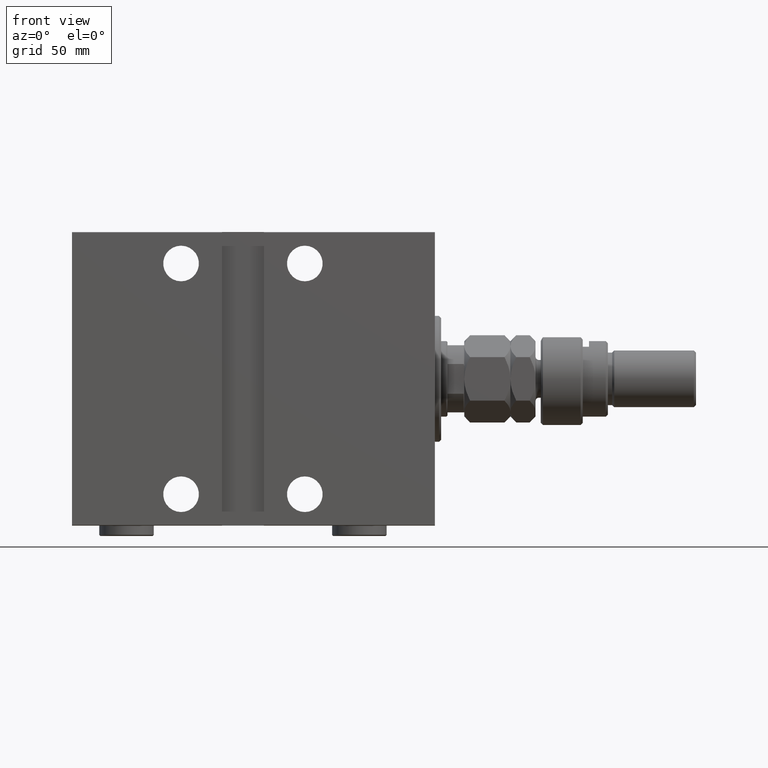
[diagram: clean part render]
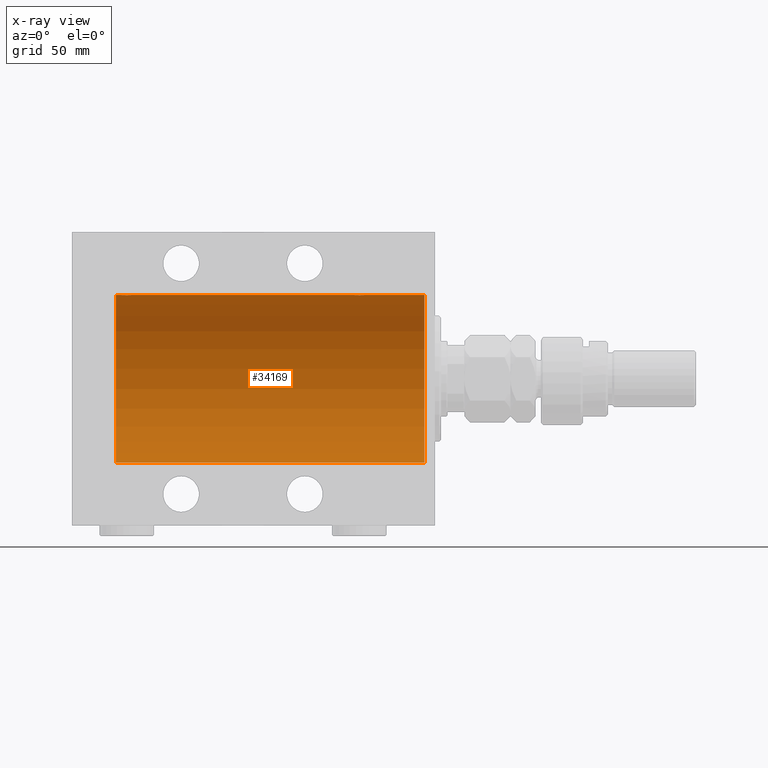
[diagram: x-ray — body ghosted, one internal face saturated and labeled with its STEP entity id]
A machine part, front view, then the same camera in x-ray: the body is ghosted and one INTERNAL B-rep face — a face not visible from any outside direction — is saturated and labeled: STEP entity #34169.
In plain terms, the highlighted cylindrical surface (partial cylindrical patch) has radius 40 mm, axis along (1, 0, -0).
Its self-contained STEP definition (entity closure, byte-faithful):
#463 = LINE ( 'NONE', #29855, #35628 ) ;
#1110 = B_SPLINE_CURVE_WITH_KNOTS ( 'NONE', 3,
 ( #13234, #6518, #27797, #24203, #38802, #35456, #32103, #17048, #2230, #6049, #17274, #2698, #42630, #3173, #46664, #39279, #28739, #21093, #20629, #2935, #31864, #13939, #31633, #35220, #38564, #43095, #46426, #24691, #2471, #10111, #9869, #24443 ),
 .UNSPECIFIED., .F., .F.,
 ( 4, 2, 2, 2, 2, 2, 2, 2, 2, 2, 2, 2, 2, 2, 2, 4 ),
 ( 0.009382660366305105304, 0.009968941372944142842, 0.01055522237958318038, 0.01114150338622221965, 0.01172778439286125719, 0.01231406539950029473, 0.01290034640613933400, 0.01348662741277837154, 0.01407290841941740908, 0.01465918942605644835, 0.01524547043269548416, 0.01583175143933452517, 0.01641803244597356271, 0.01700431345261260024, 0.01759059445925163778, 0.01876315647252971286 ),
 .UNSPECIFIED. ) ;
#1304 = CARTESIAN_POINT ( 'NONE',  ( 144.0000000000000284, -0.1957844162750525807, 40.00000000000000000 ) ) ;
#1772 = VERTEX_POINT ( 'NONE', #4024 ) ;
#1792 = CARTESIAN_POINT ( 'NONE',  ( 144.7390238300526164, -1.981471132463162643, 39.95113231465138171 ) ) ;
#2230 = CARTESIAN_POINT ( 'NONE',  ( 33.73902383005257377, -1.981471132463168416, 39.95113231465138881 ) ) ;
#2471 = CARTESIAN_POINT ( 'NONE',  ( 38.69537007708435539, -1.331594428131644747, 39.97823692017209396 ) ) ;
#2509 = CARTESIAN_POINT ( 'NONE',  ( 152.0000000000000000, 0.000000000000000000, 0.000000000000000000 ) ) ;
#2523 = LINE ( 'NONE', #24960, #41091 ) ;
#2698 = CARTESIAN_POINT ( 'NONE',  ( 34.49556917086533758, -2.602909538701760006, 39.91537030566259148 ) ) ;
#2935 = CARTESIAN_POINT ( 'NONE',  ( 36.77455678826341057, -2.904869018727228358, 39.89440043036668015 ) ) ;
#3173 = CARTESIAN_POINT ( 'NONE',  ( 35.03061658105534804, -2.845855236045349734, 39.89870693240651889 ) ) ;
#4024 = CARTESIAN_POINT ( 'NONE',  ( 152.0000000000000000, 4.898587196589413026E-15, -40.00000000000000000 ) ) ;
#4064 = EDGE_CURVE ( 'NONE', #1772, #43406, #463, .T. ) ;
#4418 = CARTESIAN_POINT ( 'NONE',  ( 147.9648932585351702, -2.847401743820454190, 39.89859630624609821 ) ) ;
#4615 = CARTESIAN_POINT ( 'NONE',  ( 5.000000000000004441, 4.898587196589413026E-15, -40.00000000000000000 ) ) ;
#4891 = CARTESIAN_POINT ( 'NONE',  ( 144.1533472698686182, -0.9668189122103342248, 39.98872185468384544 ) ) ;
#5329 = EDGE_CURVE ( 'NONE', #47017, #22096, #22344, .T. ) ;
#5368 = CARTESIAN_POINT ( 'NONE',  ( 144.3027865941912182, -1.327859336864145590, 39.97836169682017982 ) ) ;
#5455 = B_SPLINE_CURVE_WITH_KNOTS ( 'NONE', 3,
 ( #34535, #1304, #23528, #38118, #4891, #5368, #26178, #16363, #1792, #8476, #23055, #19466, #33586, #30953, #34055, #11602, #15884, #41473, #40762, #8005, #4418, #19000, #31668, #31192, #17310, #42899, #24007, #28067, #28311, #45757, #46226, #9668 ),
 .UNSPECIFIED., .F., .F.,
 ( 4, 2, 2, 2, 2, 2, 2, 2, 2, 2, 2, 2, 2, 2, 2, 4 ),
 ( 0.009382660366305094896, 0.009968941372944130699, 0.01055522237958316650, 0.01114150338622220404, 0.01172778439286123985, 0.01231406539950027565, 0.01290034640613930972, 0.01348662741277834379, 0.01407290841941737959, 0.01465918942605641540, 0.01524547043269544946, 0.01583175143933448353, 0.01641803244597352107, 0.01700431345261255514, 0.01759059445925158921, 0.01876315647252969204 ),
 .UNSPECIFIED. ) ;
#5474 = CIRCLE ( 'NONE', #38303, 40.00000000000000000 ) ;
#5921 = VECTOR ( 'NONE', #47077, 1000.000000000000000 ) ;
#6049 = CARTESIAN_POINT ( 'NONE',  ( 34.01538552187719233, -2.258217541132905293, 39.93644519243653690 ) ) ;
#6518 = CARTESIAN_POINT ( 'NONE',  ( 32.99999999999997158, -0.1957844162750552452, 40.00000000000000000 ) ) ;
#6638 = CARTESIAN_POINT ( 'NONE',  ( 152.0000000000000000, 0.000000000000000000, 40.00000000000000000 ) ) ;
#6703 = CARTESIAN_POINT ( 'NONE',  ( 39.00000000000000000, 1.037715139942869821E-15, 40.00000000000000000 ) ) ;
#6855 = CARTESIAN_POINT ( 'NONE',  ( 152.0000000000000000, 0.000000000000000000, 0.000000000000000000 ) ) ;
#8005 = CARTESIAN_POINT ( 'NONE',  ( 147.7745567882635100, -2.904869018727220364, 39.89440043036669437 ) ) ;
#8406 = EDGE_CURVE ( 'NONE', #33878, #30410, #1110, .T. ) ;
#8450 = ORIENTED_EDGE ( 'NONE', *, *, #5329, .F. ) ;
#8476 = CARTESIAN_POINT ( 'NONE',  ( 145.0153855218772208, -2.258217541132898631, 39.93644519243653690 ) ) ;
#8762 = ORIENTED_EDGE ( 'NONE', *, *, #20652, .T. ) ;
#9668 = CARTESIAN_POINT ( 'NONE',  ( 150.0000000000000284, 1.446721683758770418E-15, 40.00000000000000000 ) ) ;
#9869 = CARTESIAN_POINT ( 'NONE',  ( 39.00000000000000711, -0.3964922677423692865, 40.00000000000000711 ) ) ;
#9891 = CIRCLE ( 'NONE', #44978, 40.00000000000000000 ) ;
#10111 = CARTESIAN_POINT ( 'NONE',  ( 38.92026174991647025, -0.7903958539027386987, 39.99381900068935636 ) ) ;
#10122 = VERTEX_POINT ( 'NONE', #47032 ) ;
#10148 = DIRECTION ( 'NONE',  ( -1.000000000000000000, 0.000000000000000000, 0.000000000000000000 ) ) ;
#10700 = EDGE_CURVE ( 'NONE', #1772, #47017, #9891, .T. ) ;
#11602 = CARTESIAN_POINT ( 'NONE',  ( 146.6047751654642468, -2.980272303779546217, 39.88883864243170052 ) ) ;
#12037 = CARTESIAN_POINT ( 'NONE',  ( 144.0000000000000284, -1.482387970046064334E-23, 40.00000000000000000 ) ) ;
#12922 = ORIENTED_EDGE ( 'NONE', *, *, #43924, .T. ) ;
#12933 = DIRECTION ( 'NONE',  ( -1.000000000000000000, 0.000000000000000000, 0.000000000000000000 ) ) ;
#13234 = CARTESIAN_POINT ( 'NONE',  ( 32.99999999999999289, -1.483452932268112700E-23, 40.00000000000000000 ) ) ;
#13617 = AXIS2_PLACEMENT_3D ( 'NONE', #6855, #21440, #36027 ) ;
#13665 = LINE ( 'NONE', #14126, #5921 ) ;
#13939 = CARTESIAN_POINT ( 'NONE',  ( 37.32853644746295885, -2.696981015661930936, 39.90904630908465833 ) ) ;
#14126 = CARTESIAN_POINT ( 'NONE',  ( 152.0000000000000000, 0.000000000000000000, 40.00000000000000000 ) ) ;
#14790 = CARTESIAN_POINT ( 'NONE',  ( 32.99999999999999289, -1.483452932268112700E-23, 40.00000000000000000 ) ) ;
#15110 = ORIENTED_EDGE ( 'NONE', *, *, #8406, .T. ) ;
#15168 = DIRECTION ( 'NONE',  ( -1.000000000000000000, -0.000000000000000000, -0.000000000000000000 ) ) ;
#15884 = CARTESIAN_POINT ( 'NONE',  ( 146.7995871398080112, -2.999840380514742666, 39.88735335562825668 ) ) ;
#16263 = CARTESIAN_POINT ( 'NONE',  ( 150.0000000000000284, 1.446721683758770418E-15, 40.00000000000000000 ) ) ;
#16363 = CARTESIAN_POINT ( 'NONE',  ( 144.6149239908465063, -1.830402106103516280, 39.95843610133492518 ) ) ;
#17048 = CARTESIAN_POINT ( 'NONE',  ( 33.61492399084646365, -1.830402106103518722, 39.95843610133494650 ) ) ;
#17274 = CARTESIAN_POINT ( 'NONE',  ( 34.16955177177597847, -2.384933850258112553, 39.92898715513240404 ) ) ;
#17310 = CARTESIAN_POINT ( 'NONE',  ( 148.9813627951423030, -2.261082456166709775, 39.93628274425758207 ) ) ;
#19000 = CARTESIAN_POINT ( 'NONE',  ( 148.3285364474630228, -2.696981015661923387, 39.90904630908469386 ) ) ;
#19466 = CARTESIAN_POINT ( 'NONE',  ( 145.4955691708653092, -2.602909538701757342, 39.91537030566259858 ) ) ;
#20395 = VECTOR ( 'NONE', #15168, 1000.000000000000000 ) ;
#20629 = CARTESIAN_POINT ( 'NONE',  ( 36.39109692509333627, -2.980812880639903906, 39.88879797994688658 ) ) ;
#20652 = EDGE_CURVE ( 'NONE', #28911, #22096, #5455, .T. ) ;
#21093 = CARTESIAN_POINT ( 'NONE',  ( 36.19560531073086906, -3.000157693440643758, 39.88732948994960026 ) ) ;
#21440 = DIRECTION ( 'NONE',  ( -1.000000000000000000, -0.000000000000000000, -0.000000000000000000 ) ) ;
#22096 = VERTEX_POINT ( 'NONE', #16263 ) ;
#22344 = LINE ( 'NONE', #40048, #20395 ) ;
#23055 = CARTESIAN_POINT ( 'NONE',  ( 145.1695517717760424, -2.384933850258109445, 39.92898715513240404 ) ) ;
#23528 = CARTESIAN_POINT ( 'NONE',  ( 144.0189812288907660, -0.3904143323715967839, 39.99856256910221219 ) ) ;
#24007 = CARTESIAN_POINT ( 'NONE',  ( 149.3825168091146622, -1.833695109615722352, 39.95828327492363030 ) ) ;
#24203 = CARTESIAN_POINT ( 'NONE',  ( 33.09574826348647036, -0.7773146824711036906, 39.99291453282343412 ) ) ;
#24443 = CARTESIAN_POINT ( 'NONE',  ( 39.00000000000000000, 1.037715139942869821E-15, 40.00000000000000000 ) ) ;
#24691 = CARTESIAN_POINT ( 'NONE',  ( 38.60188728128492386, -1.506322235190783232, 39.97196309111974699 ) ) ;
#24960 = CARTESIAN_POINT ( 'NONE',  ( 152.0000000000000000, 0.000000000000000000, 40.00000000000000000 ) ) ;
#25020 = FACE_OUTER_BOUND ( 'NONE', #32119, .T. ) ;
#26178 = CARTESIAN_POINT ( 'NONE',  ( 144.3956640008792078, -1.502129635934003948, 39.97212271185186694 ) ) ;
#27494 = DIRECTION ( 'NONE',  ( 0.000000000000000000, 0.000000000000000000, 1.000000000000000000 ) ) ;
#27797 = CARTESIAN_POINT ( 'NONE',  ( 33.01898122889073051, -0.3904143323715976166, 39.99856256910221219 ) ) ;
#28067 = CARTESIAN_POINT ( 'NONE',  ( 149.6018872812850020, -1.506322235190787895, 39.97196309111976831 ) ) ;
#28311 = CARTESIAN_POINT ( 'NONE',  ( 149.6953700770844193, -1.331594428131642527, 39.97823692017210107 ) ) ;
#28739 = CARTESIAN_POINT ( 'NONE',  ( 35.79958713980802543, -2.999840380514749327, 39.88735335562824247 ) ) ;
#28911 = VERTEX_POINT ( 'NONE', #12037 ) ;
#29855 = CARTESIAN_POINT ( 'NONE',  ( 152.0000000000000000, 4.898587196589413026E-15, -40.00000000000000000 ) ) ;
#30410 = VERTEX_POINT ( 'NONE', #6703 ) ;
#30953 = CARTESIAN_POINT ( 'NONE',  ( 146.0306165810553409, -2.845855236045348402, 39.89870693240650468 ) ) ;
#31192 = CARTESIAN_POINT ( 'NONE',  ( 148.8269018463241480, -2.387636253591820079, 39.92882473497732576 ) ) ;
#31633 = CARTESIAN_POINT ( 'NONE',  ( 37.50088468404035069, -2.604941918888315833, 39.91523680494983495 ) ) ;
#31668 = CARTESIAN_POINT ( 'NONE',  ( 148.5008846840404146, -2.604941918888313612, 39.91523680494984916 ) ) ;
#31717 = ORIENTED_EDGE ( 'NONE', *, *, #4064, .T. ) ;
#31719 = EDGE_CURVE ( 'NONE', #33878, #10122, #13665, .T. ) ;
#31804 = CARTESIAN_POINT ( 'NONE',  ( 5.000000000000004441, 0.000000000000000000, 0.000000000000000000 ) ) ;
#31864 = CARTESIAN_POINT ( 'NONE',  ( 36.96489325853514174, -2.847401743820462183, 39.89859630624607689 ) ) ;
#32103 = CARTESIAN_POINT ( 'NONE',  ( 33.39566400087915810, -1.502129635934004614, 39.97212271185186694 ) ) ;
#32119 = EDGE_LOOP ( 'NONE', ( #35135, #31717, #12922, #37005, #15110, #44210, #8762, #8450 ) ) ;
#32151 = DIRECTION ( 'NONE',  ( -1.000000000000000000, -0.000000000000000000, -0.000000000000000000 ) ) ;
#33586 = CARTESIAN_POINT ( 'NONE',  ( 145.6677573113414326, -2.695129988695745826, 39.90917164320281074 ) ) ;
#33878 = VERTEX_POINT ( 'NONE', #14790 ) ;
#34055 = CARTESIAN_POINT ( 'NONE',  ( 146.2213047658425467, -2.903766417398230271, 39.89448096967571189 ) ) ;
#34169 = ADVANCED_FACE ( 'NONE', ( #25020 ), #39614, .F. ) ;
#34446 = EDGE_CURVE ( 'NONE', #28911, #30410, #2523, .T. ) ;
#34535 = CARTESIAN_POINT ( 'NONE',  ( 144.0000000000000284, -1.482387970046064334E-23, 40.00000000000000000 ) ) ;
#35135 = ORIENTED_EDGE ( 'NONE', *, *, #10700, .F. ) ;
#35220 = CARTESIAN_POINT ( 'NONE',  ( 37.82690184632411246, -2.387636253591820079, 39.92882473497731866 ) ) ;
#35456 = CARTESIAN_POINT ( 'NONE',  ( 33.30278659419118270, -1.327859336864150253, 39.97836169682017982 ) ) ;
#35491 = DIRECTION ( 'NONE',  ( 0.000000000000000000, 0.000000000000000000, 1.000000000000000000 ) ) ;
#35628 = VECTOR ( 'NONE', #44429, 1000.000000000000000 ) ;
#36027 = DIRECTION ( 'NONE',  ( 0.000000000000000000, 0.000000000000000000, 1.000000000000000000 ) ) ;
#37005 = ORIENTED_EDGE ( 'NONE', *, *, #31719, .F. ) ;
#38118 = CARTESIAN_POINT ( 'NONE',  ( 144.0957482634864846, -0.7773146824711021363, 39.99291453282343412 ) ) ;
#38303 = AXIS2_PLACEMENT_3D ( 'NONE', #31804, #12933, #27494 ) ;
#38564 = CARTESIAN_POINT ( 'NONE',  ( 37.98136279514229585, -2.261082456166707111, 39.93628274425758207 ) ) ;
#38802 = CARTESIAN_POINT ( 'NONE',  ( 33.15334726986859692, -0.9668189122103387767, 39.98872185468385254 ) ) ;
#39279 = CARTESIAN_POINT ( 'NONE',  ( 35.60477516546423260, -2.980272303779553766, 39.88883864243167920 ) ) ;
#39614 = CYLINDRICAL_SURFACE ( 'NONE', #13617, 40.00000000000000000 ) ;
#40048 = CARTESIAN_POINT ( 'NONE',  ( 152.0000000000000000, 0.000000000000000000, 40.00000000000000000 ) ) ;
#40762 = CARTESIAN_POINT ( 'NONE',  ( 147.3910969250933931, -2.980812880639897688, 39.88879797994690080 ) ) ;
#41091 = VECTOR ( 'NONE', #32151, 1000.000000000000000 ) ;
#41473 = CARTESIAN_POINT ( 'NONE',  ( 147.1956053107309685, -3.000157693440639761, 39.88732948994960736 ) ) ;
#42630 = CARTESIAN_POINT ( 'NONE',  ( 34.66775731134134730, -2.695129988695744494, 39.90917164320281074 ) ) ;
#42899 = CARTESIAN_POINT ( 'NONE',  ( 149.2582967032050760, -1.984537326394308909, 39.95097977400577349 ) ) ;
#43095 = CARTESIAN_POINT ( 'NONE',  ( 38.25829670320502629, -1.984537326394305801, 39.95097977400578060 ) ) ;
#43406 = VERTEX_POINT ( 'NONE', #4615 ) ;
#43924 = EDGE_CURVE ( 'NONE', #43406, #10122, #5474, .T. ) ;
#44210 = ORIENTED_EDGE ( 'NONE', *, *, #34446, .F. ) ;
#44429 = DIRECTION ( 'NONE',  ( -1.000000000000000000, -0.000000000000000000, -0.000000000000000000 ) ) ;
#44978 = AXIS2_PLACEMENT_3D ( 'NONE', #2509, #10148, #35491 ) ;
#45757 = CARTESIAN_POINT ( 'NONE',  ( 149.9202617499165342, -0.7903958539027363672, 39.99381900068937767 ) ) ;
#46226 = CARTESIAN_POINT ( 'NONE',  ( 150.0000000000000284, -0.3964922677423700081, 40.00000000000001421 ) ) ;
#46426 = CARTESIAN_POINT ( 'NONE',  ( 38.38251680911464803, -1.833695109615718355, 39.95828327492363741 ) ) ;
#46664 = CARTESIAN_POINT ( 'NONE',  ( 35.22130476584258219, -2.903766417398241373, 39.89448096967571189 ) ) ;
#47017 = VERTEX_POINT ( 'NONE', #6638 ) ;
#47032 = CARTESIAN_POINT ( 'NONE',  ( 5.000000000000004441, 0.000000000000000000, 40.00000000000000000 ) ) ;
#47077 = DIRECTION ( 'NONE',  ( -1.000000000000000000, -0.000000000000000000, -0.000000000000000000 ) ) ;